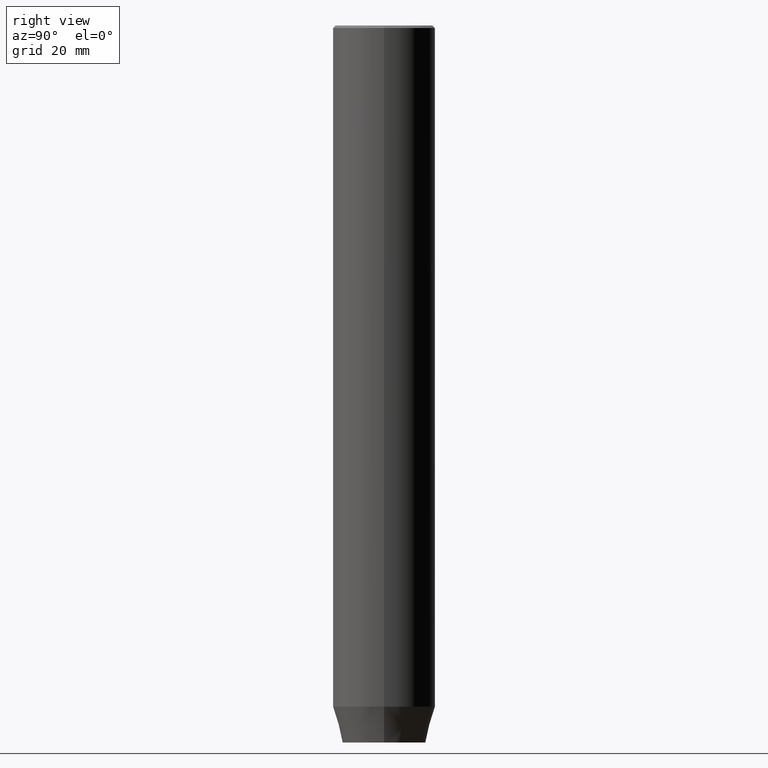
[diagram: clean part render]
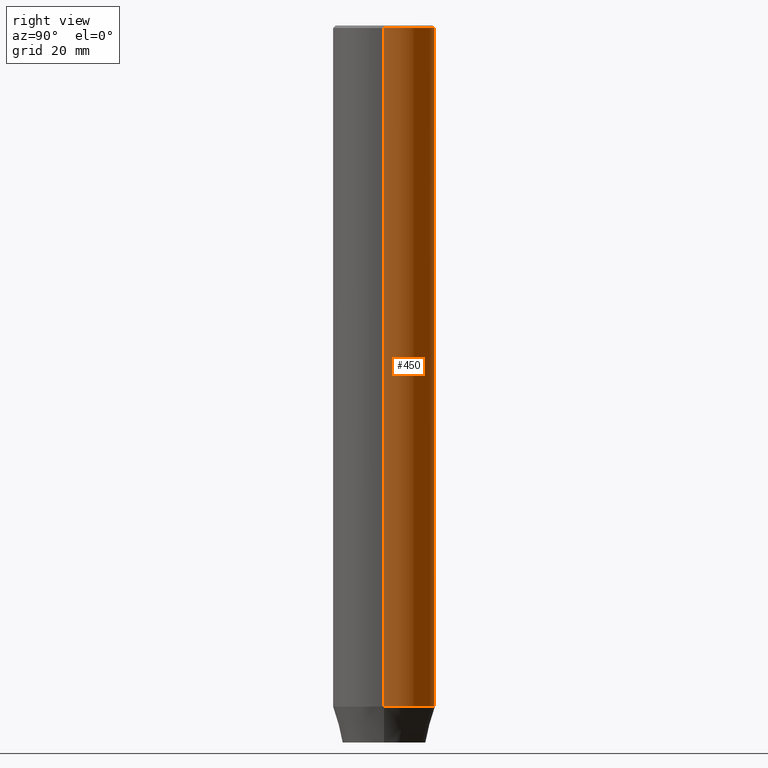
[diagram: same view with one face highlighted and labeled with its STEP entity id]
A machine part, right view. The second image highlights one B-rep face of the part: STEP entity #450.
In plain terms, the highlighted cylindrical surface (partial cylindrical patch) has radius 10 mm, axis along (-0, -0, 1).
Its self-contained STEP definition (entity closure, byte-faithful):
#7 = VERTEX_POINT ( 'NONE', #561 ) ;
#39 = AXIS2_PLACEMENT_3D ( 'NONE', #375, #321, #325 ) ;
#89 = CYLINDRICAL_SURFACE ( 'NONE', #470, 10.00000000000000000 ) ;
#128 = CIRCLE ( 'NONE', #291, 10.00000000000000000 ) ;
#133 = VERTEX_POINT ( 'NONE', #485 ) ;
#136 = FACE_OUTER_BOUND ( 'NONE', #203, .T. ) ;
#148 = DIRECTION ( 'NONE',  ( 1.000000000000000000, 0.000000000000000000, 0.000000000000000000 ) ) ;
#203 = EDGE_LOOP ( 'NONE', ( #254, #276, #549, #390 ) ) ;
#229 = LINE ( 'NONE', #531, #483 ) ;
#243 = VERTEX_POINT ( 'NONE', #273 ) ;
#254 = ORIENTED_EDGE ( 'NONE', *, *, #587, .T. ) ;
#273 = CARTESIAN_POINT ( 'NONE',  ( -10.00000000000000000, 1.224646799147353256E-15, -133.0000000000000000 ) ) ;
#276 = ORIENTED_EDGE ( 'NONE', *, *, #458, .T. ) ;
#280 = CARTESIAN_POINT ( 'NONE',  ( 0.000000000000000000, 0.000000000000000000, -133.0000000000000000 ) ) ;
#291 = AXIS2_PLACEMENT_3D ( 'NONE', #280, #394, #148 ) ;
#300 = CIRCLE ( 'NONE', #39, 10.00000000000000000 ) ;
#317 = DIRECTION ( 'NONE',  ( 1.000000000000000000, 0.000000000000000000, 0.000000000000000000 ) ) ;
#321 = DIRECTION ( 'NONE',  ( 0.000000000000000000, 0.000000000000000000, -1.000000000000000000 ) ) ;
#325 = DIRECTION ( 'NONE',  ( 1.000000000000000000, 0.000000000000000000, 0.000000000000000000 ) ) ;
#362 = DIRECTION ( 'NONE',  ( -0.000000000000000000, -0.000000000000000000, 1.000000000000000000 ) ) ;
#375 = CARTESIAN_POINT ( 'NONE',  ( 0.000000000000000000, 0.000000000000000000, -0.4999999999999987232 ) ) ;
#390 = ORIENTED_EDGE ( 'NONE', *, *, #424, .F. ) ;
#394 = DIRECTION ( 'NONE',  ( -0.000000000000000000, -0.000000000000000000, 1.000000000000000000 ) ) ;
#405 = LINE ( 'NONE', #409, #492 ) ;
#409 = CARTESIAN_POINT ( 'NONE',  ( 10.00000000000000000, 0.000000000000000000, 0.000000000000000000 ) ) ;
#416 = CARTESIAN_POINT ( 'NONE',  ( 0.000000000000000000, 0.000000000000000000, 0.000000000000000000 ) ) ;
#424 = EDGE_CURVE ( 'NONE', #497, #133, #405, .T. ) ;
#450 = ADVANCED_FACE ( 'NONE', ( #136 ), #89, .T. ) ;
#458 = EDGE_CURVE ( 'NONE', #243, #7, #229, .T. ) ;
#470 = AXIS2_PLACEMENT_3D ( 'NONE', #416, #534, #317 ) ;
#483 = VECTOR ( 'NONE', #586, 1000.000000000000000 ) ;
#485 = CARTESIAN_POINT ( 'NONE',  ( 10.00000000000000000, 0.000000000000000000, -0.4999999999999987232 ) ) ;
#492 = VECTOR ( 'NONE', #362, 1000.000000000000000 ) ;
#497 = VERTEX_POINT ( 'NONE', #584 ) ;
#510 = EDGE_CURVE ( 'NONE', #7, #133, #300, .T. ) ;
#531 = CARTESIAN_POINT ( 'NONE',  ( -10.00000000000000000, 1.224646799147353256E-15, 0.000000000000000000 ) ) ;
#534 = DIRECTION ( 'NONE',  ( -0.000000000000000000, -0.000000000000000000, 1.000000000000000000 ) ) ;
#549 = ORIENTED_EDGE ( 'NONE', *, *, #510, .T. ) ;
#561 = CARTESIAN_POINT ( 'NONE',  ( -10.00000000000000000, 1.224646799147353256E-15, -0.4999999999999987232 ) ) ;
#584 = CARTESIAN_POINT ( 'NONE',  ( 10.00000000000000000, 0.000000000000000000, -133.0000000000000000 ) ) ;
#586 = DIRECTION ( 'NONE',  ( -0.000000000000000000, -0.000000000000000000, 1.000000000000000000 ) ) ;
#587 = EDGE_CURVE ( 'NONE', #497, #243, #128, .T. ) ;